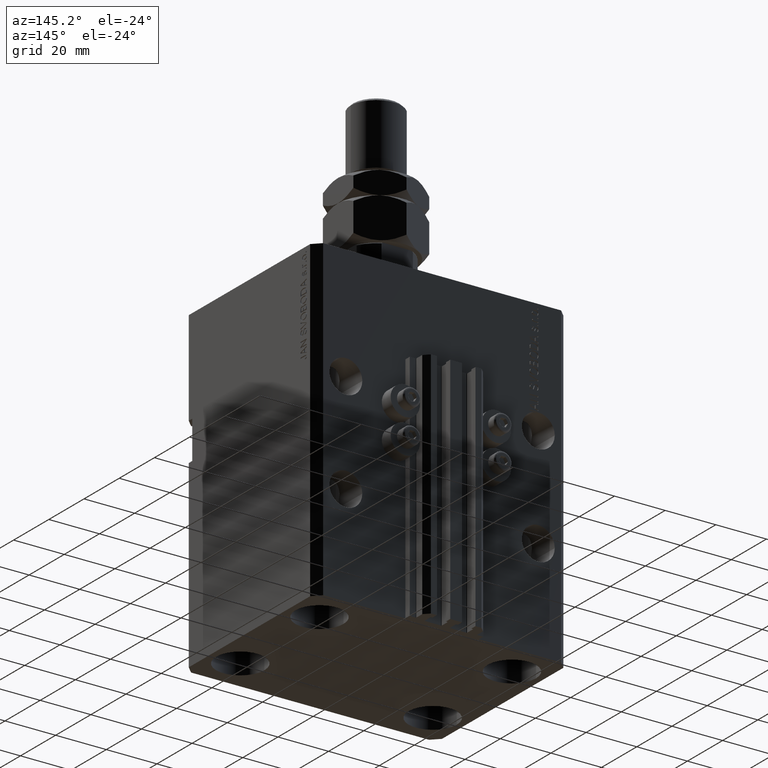
[diagram: clean part render]
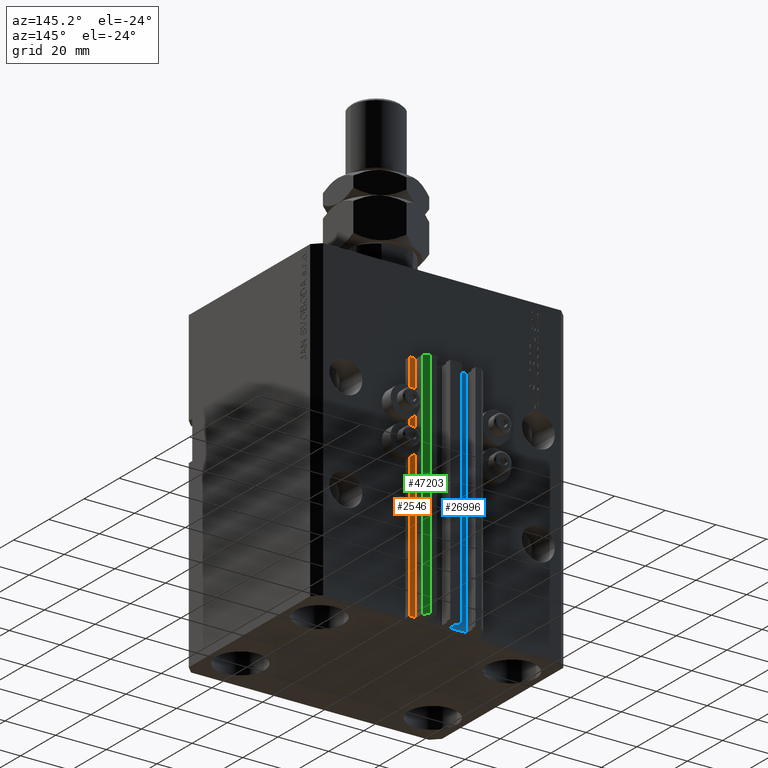
[diagram: same view with three faces highlighted in distinct colors, each labeled with its STEP entity id]
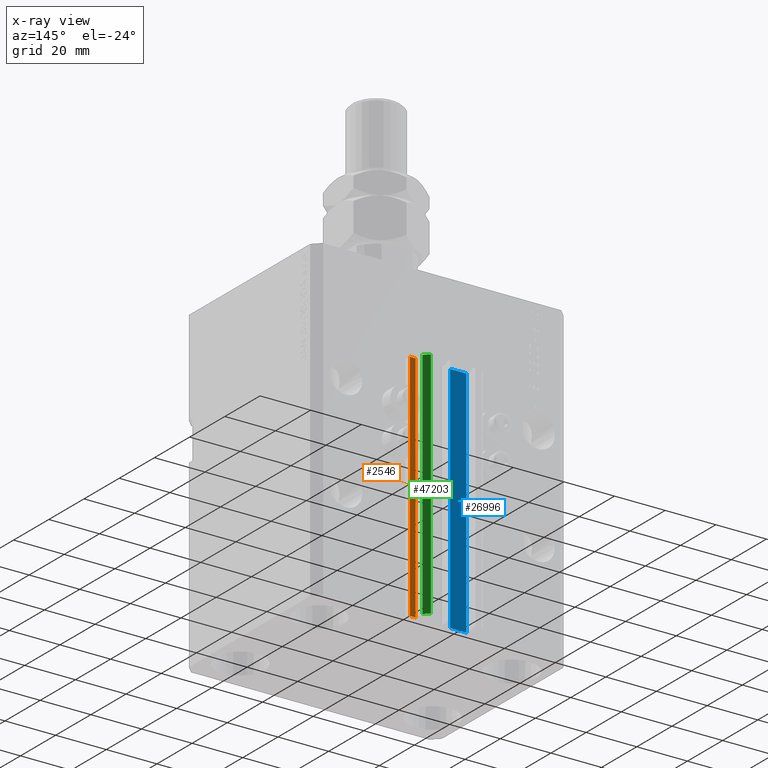
[diagram: x-ray of the same camera — body ghosted, the three highlighted faces saturated]
A machine part, auxiliary view with three faces highlighted in distinct colors.
The next image is the same camera in x-ray (body ghosted, the three faces saturated) — at least one of them is partly hidden behind the body in this view.
Their STEP definitions:

[orange] entity #2546 — the highlighted planar face has unit normal (0, 1, 0).
#2546 = ADVANCED_FACE ( 'NONE', ( #41808 ), #7345, .T. ) ;
#6357 = CARTESIAN_POINT ( 'NONE',  ( 14.49999999999999645, 40.00000000000002132, -33.00000000000000000 ) ) ;
#7345 = PLANE ( 'NONE',  #34022 ) ;
#9338 = DIRECTION ( 'NONE',  ( 0.000000000000000000, 0.000000000000000000, 1.000000000000000000 ) ) ;
#9696 = VERTEX_POINT ( 'NONE', #45809 ) ;
#12675 = EDGE_CURVE ( 'NONE', #9696, #26105, #13927, .T. ) ;
#13927 = LINE ( 'NONE', #6357, #46288 ) ;
#14383 = ORIENTED_EDGE ( 'NONE', *, *, #12675, .F. ) ;
#14972 = CARTESIAN_POINT ( 'NONE',  ( 12.20000000000000107, 40.00000000000002132, -125.0000000000000000 ) ) ;
#18312 = CARTESIAN_POINT ( 'NONE',  ( 14.49999999999999645, 40.00000000000002132, -125.0000000000000000 ) ) ;
#18722 = CARTESIAN_POINT ( 'NONE',  ( 12.20000000000000107, 40.00000000000002132, -125.0000000000000000 ) ) ;
#18927 = CARTESIAN_POINT ( 'NONE',  ( 14.49999999999999645, 40.00000000000002132, -125.0000000000000000 ) ) ;
#19357 = DIRECTION ( 'NONE',  ( -1.000000000000000000, 0.000000000000000000, 0.000000000000000000 ) ) ;
#23592 = VECTOR ( 'NONE', #19357, 1000.000000000000000 ) ;
#24680 = ORIENTED_EDGE ( 'NONE', *, *, #42546, .T. ) ;
#25468 = VECTOR ( 'NONE', #45413, 1000.000000000000000 ) ;
#26105 = VERTEX_POINT ( 'NONE', #32747 ) ;
#28452 = DIRECTION ( 'NONE',  ( 0.000000000000000000, 1.000000000000000000, -0.000000000000000000 ) ) ;
#29619 = LINE ( 'NONE', #43809, #43880 ) ;
#30330 = VERTEX_POINT ( 'NONE', #18722 ) ;
#30644 = ORIENTED_EDGE ( 'NONE', *, *, #35827, .F. ) ;
#31650 = EDGE_CURVE ( 'NONE', #35913, #30330, #49819, .T. ) ;
#32747 = CARTESIAN_POINT ( 'NONE',  ( 12.20000000000000107, 40.00000000000002132, -33.00000000000000000 ) ) ;
#33276 = DIRECTION ( 'NONE',  ( -1.000000000000000000, 0.000000000000000000, 0.000000000000000000 ) ) ;
#33816 = LINE ( 'NONE', #14972, #25468 ) ;
#34022 = AXIS2_PLACEMENT_3D ( 'NONE', #18927, #28452, #9338 ) ;
#35827 = EDGE_CURVE ( 'NONE', #35913, #9696, #29619, .T. ) ;
#35913 = VERTEX_POINT ( 'NONE', #18312 ) ;
#41808 = FACE_OUTER_BOUND ( 'NONE', #46957, .T. ) ;
#42245 = CARTESIAN_POINT ( 'NONE',  ( 14.49999999999999645, 40.00000000000002132, -125.0000000000000000 ) ) ;
#42546 = EDGE_CURVE ( 'NONE', #30330, #26105, #33816, .T. ) ;
#43809 = CARTESIAN_POINT ( 'NONE',  ( 14.49999999999999645, 40.00000000000002132, -125.0000000000000000 ) ) ;
#43880 = VECTOR ( 'NONE', #44053, 1000.000000000000000 ) ;
#44053 = DIRECTION ( 'NONE',  ( 0.000000000000000000, 0.000000000000000000, 1.000000000000000000 ) ) ;
#45413 = DIRECTION ( 'NONE',  ( 0.000000000000000000, 0.000000000000000000, 1.000000000000000000 ) ) ;
#45809 = CARTESIAN_POINT ( 'NONE',  ( 14.49999999999999645, 40.00000000000002132, -33.00000000000000000 ) ) ;
#46288 = VECTOR ( 'NONE', #33276, 1000.000000000000000 ) ;
#46372 = ORIENTED_EDGE ( 'NONE', *, *, #31650, .T. ) ;
#46957 = EDGE_LOOP ( 'NONE', ( #14383, #30644, #46372, #24680 ) ) ;
#49819 = LINE ( 'NONE', #42245, #23592 ) ;

[blue] entity #26996 — the highlighted planar face has unit normal (0, 1, 0).
#44 = EDGE_CURVE ( 'NONE', #3588, #48656, #29399, .T. ) ;
#2149 = ORIENTED_EDGE ( 'NONE', *, *, #48494, .T. ) ;
#3588 = VERTEX_POINT ( 'NONE', #13179 ) ;
#3910 = LINE ( 'NONE', #46436, #23133 ) ;
#3973 = ORIENTED_EDGE ( 'NONE', *, *, #18056, .F. ) ;
#6585 = AXIS2_PLACEMENT_3D ( 'NONE', #31284, #42348, #46636 ) ;
#6616 = VECTOR ( 'NONE', #10298, 1000.000000000000000 ) ;
#7775 = VERTEX_POINT ( 'NONE', #32524 ) ;
#10298 = DIRECTION ( 'NONE',  ( 0.000000000000000000, 0.000000000000000000, 1.000000000000000000 ) ) ;
#11666 = PLANE ( 'NONE',  #6585 ) ;
#13179 = CARTESIAN_POINT ( 'NONE',  ( -1.800000000000000933, 39.50000000000000000, -125.0000000000000000 ) ) ;
#14476 = ORIENTED_EDGE ( 'NONE', *, *, #44, .F. ) ;
#14534 = VECTOR ( 'NONE', #19370, 1000.000000000000000 ) ;
#18056 = EDGE_CURVE ( 'NONE', #48656, #20244, #28003, .T. ) ;
#19370 = DIRECTION ( 'NONE',  ( -1.000000000000000000, 0.000000000000000000, 0.000000000000000000 ) ) ;
#19619 = CARTESIAN_POINT ( 'NONE',  ( -1.800000000000000933, 39.50000000000000000, -125.0000000000000000 ) ) ;
#20034 = EDGE_CURVE ( 'NONE', #7775, #20244, #3910, .T. ) ;
#20244 = VERTEX_POINT ( 'NONE', #21964 ) ;
#21964 = CARTESIAN_POINT ( 'NONE',  ( -8.199999999999997513, 39.50000000000000000, -33.00000000000000000 ) ) ;
#23133 = VECTOR ( 'NONE', #27053, 1000.000000000000000 ) ;
#23718 = DIRECTION ( 'NONE',  ( -1.000000000000000000, 0.000000000000000000, 0.000000000000000000 ) ) ;
#24631 = CARTESIAN_POINT ( 'NONE',  ( -1.800000000000000933, 39.50000000000000000, -33.00000000000000000 ) ) ;
#26915 = LINE ( 'NONE', #19619, #14534 ) ;
#26996 = ADVANCED_FACE ( 'NONE', ( #46146 ), #11666, .T. ) ;
#27053 = DIRECTION ( 'NONE',  ( 0.000000000000000000, 0.000000000000000000, 1.000000000000000000 ) ) ;
#27921 = VECTOR ( 'NONE', #23718, 1000.000000000000000 ) ;
#28003 = LINE ( 'NONE', #39079, #27921 ) ;
#29399 = LINE ( 'NONE', #44763, #6616 ) ;
#31284 = CARTESIAN_POINT ( 'NONE',  ( -1.800000000000000933, 39.50000000000000000, -125.0000000000000000 ) ) ;
#32524 = CARTESIAN_POINT ( 'NONE',  ( -8.199999999999997513, 39.50000000000000000, -125.0000000000000000 ) ) ;
#39079 = CARTESIAN_POINT ( 'NONE',  ( -1.800000000000000933, 39.50000000000000000, -33.00000000000000000 ) ) ;
#42348 = DIRECTION ( 'NONE',  ( 0.000000000000000000, 1.000000000000000000, -0.000000000000000000 ) ) ;
#43512 = ORIENTED_EDGE ( 'NONE', *, *, #20034, .T. ) ;
#44763 = CARTESIAN_POINT ( 'NONE',  ( -1.800000000000000933, 39.50000000000000000, -125.0000000000000000 ) ) ;
#46146 = FACE_OUTER_BOUND ( 'NONE', #47079, .T. ) ;
#46436 = CARTESIAN_POINT ( 'NONE',  ( -8.199999999999997513, 39.50000000000000000, -125.0000000000000000 ) ) ;
#46636 = DIRECTION ( 'NONE',  ( 0.000000000000000000, 0.000000000000000000, 1.000000000000000000 ) ) ;
#47079 = EDGE_LOOP ( 'NONE', ( #3973, #14476, #2149, #43512 ) ) ;
#48494 = EDGE_CURVE ( 'NONE', #3588, #7775, #26915, .T. ) ;
#48656 = VERTEX_POINT ( 'NONE', #24631 ) ;

[green] entity #47203 — the highlighted planar face has unit normal (0.7071, 0.7071, 0).
#1358 = VECTOR ( 'NONE', #14055, 1000.000000000000114 ) ;
#2814 = CARTESIAN_POINT ( 'NONE',  ( 12.00000000000000000, 43.50000000000002132, -125.0000000000000000 ) ) ;
#2912 = DIRECTION ( 'NONE',  ( 0.000000000000000000, 0.000000000000000000, 1.000000000000000000 ) ) ;
#3820 = ORIENTED_EDGE ( 'NONE', *, *, #22630, .F. ) ;
#4241 = CARTESIAN_POINT ( 'NONE',  ( 12.00000000000000000, 43.50000000000002132, -125.0000000000000000 ) ) ;
#5208 = CARTESIAN_POINT ( 'NONE',  ( 9.999999999999998224, 45.50000000000002842, -33.00000000000000000 ) ) ;
#5998 = CARTESIAN_POINT ( 'NONE',  ( 12.00000000000000000, 43.50000000000002132, -33.00000000000000000 ) ) ;
#6344 = DIRECTION ( 'NONE',  ( 0.000000000000000000, 0.000000000000000000, 1.000000000000000000 ) ) ;
#7800 = EDGE_LOOP ( 'NONE', ( #38372, #3820, #10631, #20242 ) ) ;
#10631 = ORIENTED_EDGE ( 'NONE', *, *, #41083, .T. ) ;
#10926 = VERTEX_POINT ( 'NONE', #26902 ) ;
#11822 = CARTESIAN_POINT ( 'NONE',  ( 9.999999999999998224, 45.50000000000002842, -125.0000000000000000 ) ) ;
#14055 = DIRECTION ( 'NONE',  ( -0.7071067811865474617, 0.7071067811865474617, 0.000000000000000000 ) ) ;
#16482 = PLANE ( 'NONE',  #47376 ) ;
#16607 = VERTEX_POINT ( 'NONE', #5208 ) ;
#17453 = FACE_OUTER_BOUND ( 'NONE', #7800, .T. ) ;
#20242 = ORIENTED_EDGE ( 'NONE', *, *, #28204, .T. ) ;
#22031 = LINE ( 'NONE', #48976, #29104 ) ;
#22630 = EDGE_CURVE ( 'NONE', #34734, #10926, #40561, .T. ) ;
#23329 = VERTEX_POINT ( 'NONE', #11822 ) ;
#26262 = VECTOR ( 'NONE', #41357, 1000.000000000000114 ) ;
#26902 = CARTESIAN_POINT ( 'NONE',  ( 12.00000000000000000, 43.50000000000002132, -33.00000000000000000 ) ) ;
#28204 = EDGE_CURVE ( 'NONE', #23329, #16607, #22031, .T. ) ;
#28770 = DIRECTION ( 'NONE',  ( 0.7071067811865475727, 0.7071067811865475727, -0.000000000000000000 ) ) ;
#29104 = VECTOR ( 'NONE', #2912, 1000.000000000000000 ) ;
#34734 = VERTEX_POINT ( 'NONE', #4241 ) ;
#36323 = DIRECTION ( 'NONE',  ( -0.7071067811865474617, 0.7071067811865474617, 0.000000000000000000 ) ) ;
#37338 = LINE ( 'NONE', #45397, #26262 ) ;
#38183 = EDGE_CURVE ( 'NONE', #10926, #16607, #48041, .T. ) ;
#38372 = ORIENTED_EDGE ( 'NONE', *, *, #38183, .F. ) ;
#40561 = LINE ( 'NONE', #2814, #41100 ) ;
#41083 = EDGE_CURVE ( 'NONE', #34734, #23329, #37338, .T. ) ;
#41100 = VECTOR ( 'NONE', #6344, 1000.000000000000000 ) ;
#41357 = DIRECTION ( 'NONE',  ( -0.7071067811865474617, 0.7071067811865474617, 0.000000000000000000 ) ) ;
#44365 = CARTESIAN_POINT ( 'NONE',  ( 12.00000000000000000, 43.50000000000002132, -125.0000000000000000 ) ) ;
#45397 = CARTESIAN_POINT ( 'NONE',  ( 12.00000000000000000, 43.50000000000002132, -125.0000000000000000 ) ) ;
#47203 = ADVANCED_FACE ( 'NONE', ( #17453 ), #16482, .T. ) ;
#47376 = AXIS2_PLACEMENT_3D ( 'NONE', #44365, #28770, #36323 ) ;
#48041 = LINE ( 'NONE', #5998, #1358 ) ;
#48976 = CARTESIAN_POINT ( 'NONE',  ( 9.999999999999998224, 45.50000000000002842, -125.0000000000000000 ) ) ;